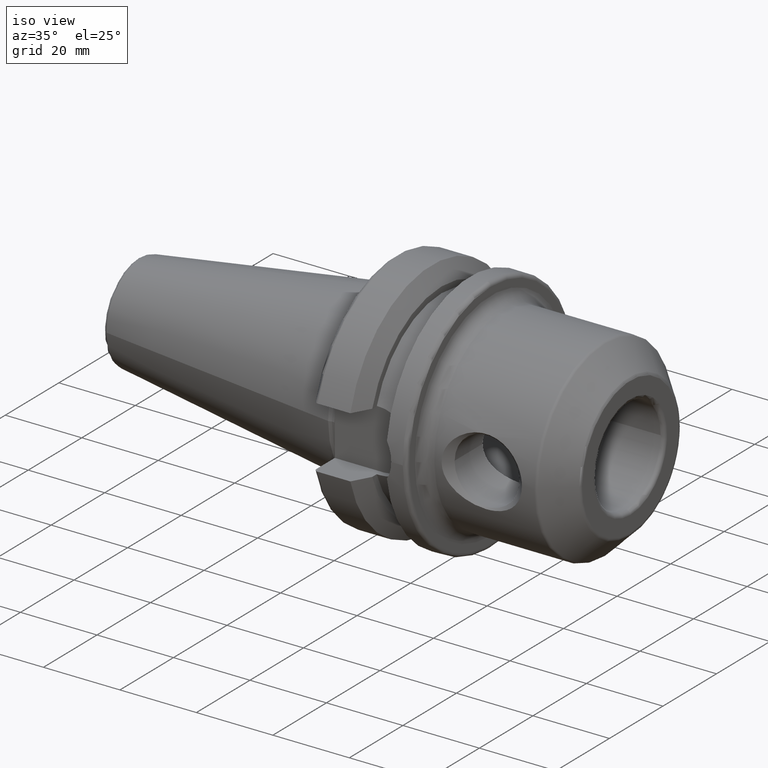
[diagram: clean part render]
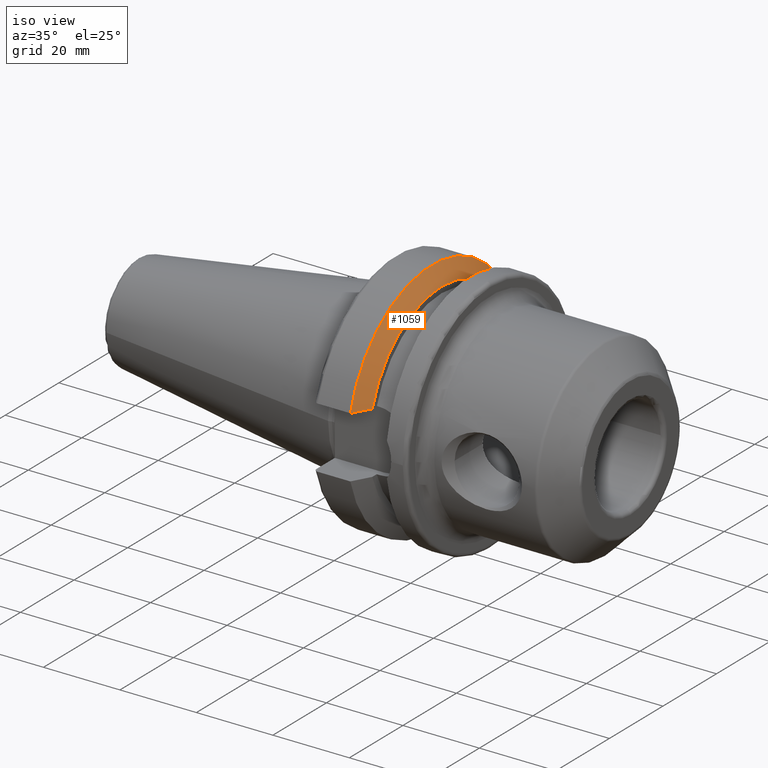
[diagram: same view with one face highlighted and labeled with its STEP entity id]
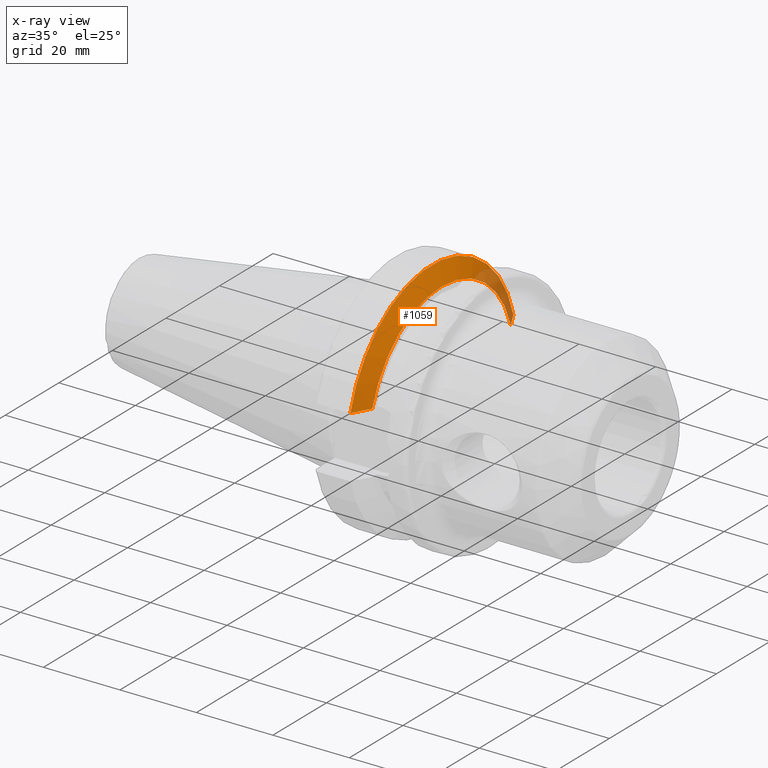
[diagram: x-ray of the same camera — body ghosted, the highlighted face saturated]
A machine part, iso view. The second image highlights one B-rep face of the part: STEP entity #1059.
The next image is the same camera in x-ray: the body ghosted, the highlighted face saturated — about 12% of this face is hidden behind the body in this view.
In plain terms, the highlighted conical surface has half-angle 60.125 deg.
Its self-contained STEP definition (entity closure, byte-faithful):
#15=(
BOUNDED_CURVE()
B_SPLINE_CURVE(2,(#1824,#1825,#1826),.UNSPECIFIED.,.F.,.F.)
B_SPLINE_CURVE_WITH_KNOTS((3,3),(0.,0.523582790832811),.UNSPECIFIED.)
CURVE()
GEOMETRIC_REPRESENTATION_ITEM()
RATIONAL_B_SPLINE_CURVE((1.,1.0030736009757,1.))
REPRESENTATION_ITEM('')
);
#18=(
BOUNDED_CURVE()
B_SPLINE_CURVE(2,(#2019,#2020,#2021),.UNSPECIFIED.,.F.,.F.)
B_SPLINE_CURVE_WITH_KNOTS((3,3),(0.,0.523582790832811),.UNSPECIFIED.)
CURVE()
GEOMETRIC_REPRESENTATION_ITEM()
RATIONAL_B_SPLINE_CURVE((1.,1.0030736009757,1.))
REPRESENTATION_ITEM('')
);
#23=CONICAL_SURFACE('',#1196,29.2970358274569,1.0493792127616);
#214=FACE_OUTER_BOUND('',#277,.T.);
#277=EDGE_LOOP('',(#931,#932,#933,#934));
#354=CIRCLE('',#1193,27.0940716549138);
#355=CIRCLE('',#1195,31.5000000000001);
#454=VERTEX_POINT('',#1821);
#455=VERTEX_POINT('',#1823);
#494=VERTEX_POINT('',#2016);
#495=VERTEX_POINT('',#2018);
#585=EDGE_CURVE('',#455,#454,#15,.T.);
#637=EDGE_CURVE('',#495,#494,#18,.T.);
#653=EDGE_CURVE('',#495,#454,#354,.T.);
#654=EDGE_CURVE('',#494,#455,#355,.T.);
#931=ORIENTED_EDGE('',*,*,#585,.T.);
#932=ORIENTED_EDGE('',*,*,#653,.F.);
#933=ORIENTED_EDGE('',*,*,#637,.T.);
#934=ORIENTED_EDGE('',*,*,#654,.T.);
#1059=ADVANCED_FACE('',(#214),#23,.T.);
#1193=AXIS2_PLACEMENT_3D('',#2060,#1479,#1480);
#1195=AXIS2_PLACEMENT_3D('',#2062,#1483,#1484);
#1196=AXIS2_PLACEMENT_3D('',#2063,#1485,#1486);
#1479=DIRECTION('center_axis',(1.,0.,0.));
#1480=DIRECTION('ref_axis',(0.,0.,-1.));
#1483=DIRECTION('center_axis',(1.,0.,0.));
#1484=DIRECTION('ref_axis',(0.,0.,-1.));
#1485=DIRECTION('center_axis',(-1.,0.,0.));
#1486=DIRECTION('ref_axis',(0.,1.,0.));
#1821=CARTESIAN_POINT('',(14.1,-25.8705666509569,8.05));
#1823=CARTESIAN_POINT('',(11.5690363073382,-30.4540227227866,8.05));
#1824=CARTESIAN_POINT('Ctrl Pts',(11.5690363073382,-30.4540227227866,8.05));
#1825=CARTESIAN_POINT('Ctrl Pts',(12.9374976962935,-27.9899702651817,8.05));
#1826=CARTESIAN_POINT('Ctrl Pts',(14.1,-25.8705666509569,8.05));
#2016=CARTESIAN_POINT('',(11.5690363073382,30.4540227227866,8.05));
#2018=CARTESIAN_POINT('',(14.1,25.8705666509569,8.05));
#2019=CARTESIAN_POINT('Ctrl Pts',(14.1,25.8705666509569,8.05));
#2020=CARTESIAN_POINT('Ctrl Pts',(12.9374976962935,27.9899702651817,8.05));
#2021=CARTESIAN_POINT('Ctrl Pts',(11.5690363073382,30.4540227227866,8.05));
#2060=CARTESIAN_POINT('Origin',(14.1,0.,0.));
#2062=CARTESIAN_POINT('Origin',(11.5690363073382,0.,0.));
#2063=CARTESIAN_POINT('Origin',(12.8345181536691,0.,0.));